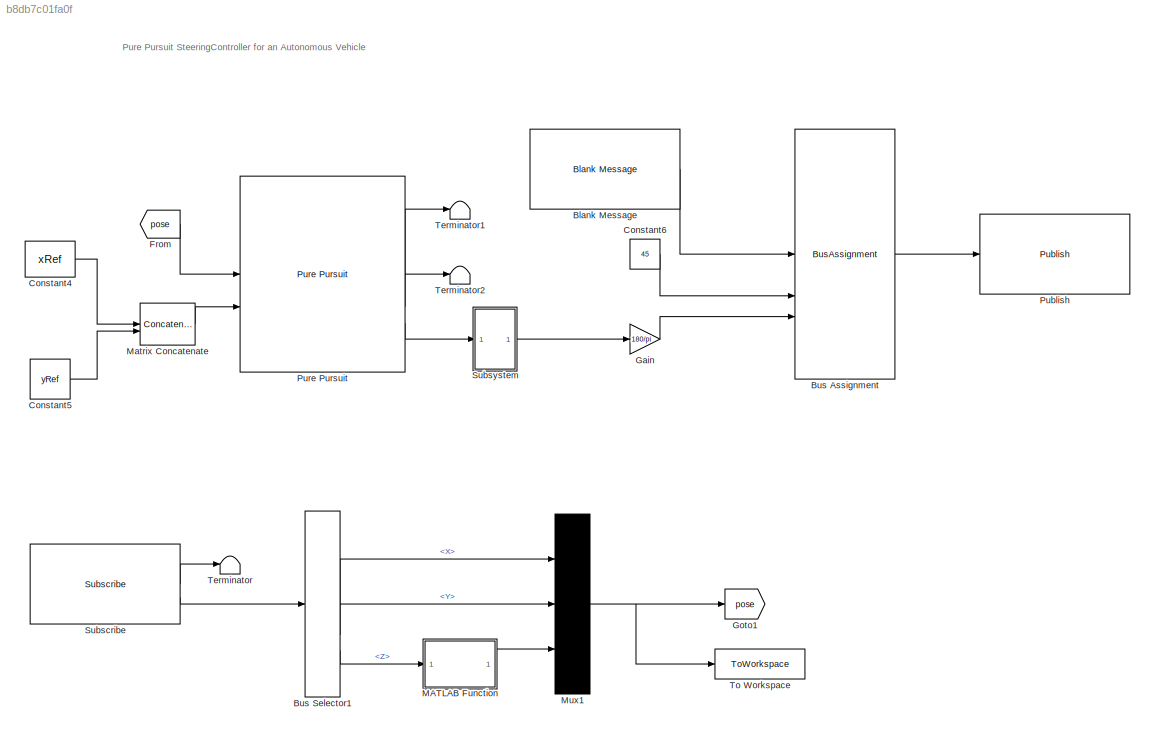
MODEL slx_b8db7c01fa0f
KIND model
CONFIG AbsTol = auto
CONFIG EnableMultiTasking = off
CONFIG FixedStep = auto
CONFIG MaxStep = auto
CONFIG MinStep = auto
CONFIG RelTol = 1e-3
CONFIG SampleTimeConstraint = Unconstrained
CONFIG SolverName = VariableStepAuto
CONFIG StartTime = 0.0
CONFIG StopTime = inf
BLOCK [Reference] Blank Message  REF=robotlib/Blank Message
  LibrarySourceBlock = roslib/ROS/Blank Message
  SourceBlock = robotlib/Blank Message
  SourceType = ROS Blank Message
BLOCK [BusAssignment] Bus Assignment
  AssignedSignals = Linear.X,Angular.Z
BLOCK [BusSelector] Bus Selector1
  OutputSignals = Pose.Position.X,Pose.Position.Y,Pose.Orientation.Z
BLOCK [Constant] Constant4
  Value = xRef
BLOCK [Constant] Constant5
  Value = yRef
BLOCK [Constant] Constant6
  Value = 45
BLOCK [From] From
  GotoTag = pose
BLOCK [Gain] Gain
  Gain = 180/pi
BLOCK [Goto] Goto1
  GotoTag = pose
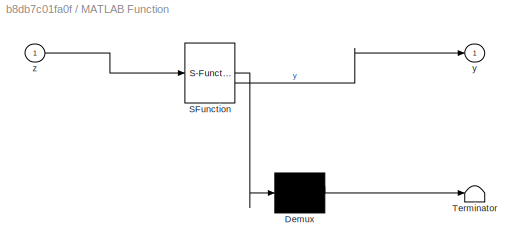
BLOCK [SubSystem] MATLAB Function
  ErrorFcn = Stateflow.Translate.translate
  LibrarySourceBlock = simulink/User-Defined\nFunctions/MATLAB Function
  PermitHierarchicalResolution = ExplicitOnly
  SFBlockType = MATLAB Function
  TreatAsAtomicUnit = on
BLOCK [Demux] MATLAB Function/ Demux 
  Outputs = 1
BLOCK [S-Function] MATLAB Function/ SFunction 
  EnableBusSupport = on
  FunctionName = sf_sfun
  PortCounts = [1 2]
  SFcnIsStateOwnerBlock = off
  SFunctionDeploymentMode = off
  Tag = Stateflow S-Function 2
BLOCK [Terminator] MATLAB Function/ Terminator 
BLOCK [Outport] MATLAB Function/y
BLOCK [Inport] MATLAB Function/z
BLOCK [Concatenate] Matrix Concatenate
  ConcatenateDimension = 2
  Mode = Multidimensional array
BLOCK [Mux] Mux1
  DisplayOption = bar
  Inputs = 3
BLOCK [Reference] Publish  REF=robotlib/Publish
  LibrarySourceBlock = roslib/ROS/Publish
  SourceBlock = robotlib/Publish
  SourceType = ROS Publish
BLOCK [Reference] Pure Pursuit  REF=robotalgslib/Pure Pursuit
  SourceBlock = robotalgslib/Pure Pursuit
  SourceType = nav.slalgs.internal.PurePursuit
BLOCK [Reference] Subscribe  REF=robotlib/Subscribe
  LibrarySourceBlock = roslib/ROS/Subscribe
  SourceBlock = robotlib/Subscribe
  SourceType = ROS Subscribe
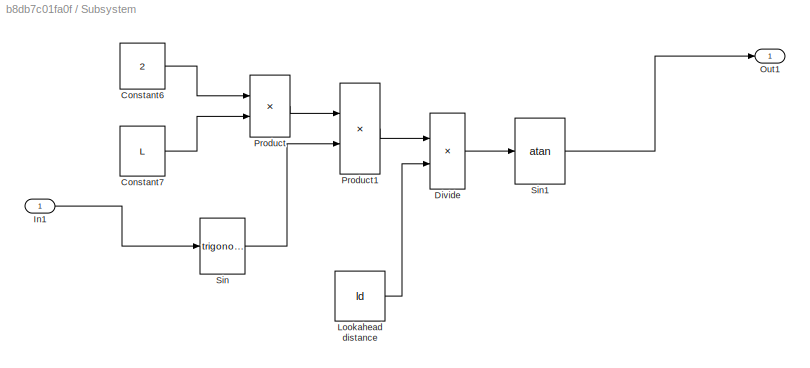
BLOCK [SubSystem] Subsystem
BLOCK [Constant] Subsystem/Constant6
  Value = 2
BLOCK [Constant] Subsystem/Constant7
  Value = L
BLOCK [Product] Subsystem/Divide
  Inputs = */
BLOCK [Inport] Subsystem/In1
BLOCK [Constant] Subsystem/Lookahead distance
  Value = ld
BLOCK [Outport] Subsystem/Out1
BLOCK [Product] Subsystem/Product
BLOCK [Product] Subsystem/Product1
BLOCK [Trigonometry] Subsystem/Sin
BLOCK [Trigonometry] Subsystem/Sin1
  Operator = atan
BLOCK [Terminator] Terminator
BLOCK [Terminator] Terminator1
BLOCK [Terminator] Terminator2
BLOCK [ToWorkspace] To Workspace
  FixptAsFi = on
  MaxDataPoints = inf
  SampleTime = -1
  SaveFormat = Timeseries
  VariableName = simout
ANNOTATION (root): Pure Pursuit SteeringController for an Autonomous Vehicle
LINE Blank Message:1 -> Bus Assignment:1
LINE Bus Assignment:1 -> Publish:1
LINE Bus Selector1:1 -> Mux1:1
LINE Bus Selector1:2 -> Mux1:2
LINE Bus Selector1:3 -> MATLAB Function:1
LINE Constant4:1 -> Matrix Concatenate:1
LINE Constant5:1 -> Matrix Concatenate:2
LINE Constant6:1 -> Bus Assignment:2
LINE From:1 -> Pure Pursuit:1
LINE Gain:1 -> Bus Assignment:3
LINE MATLAB Function:1 -> Mux1:3
LINE Matrix Concatenate:1 -> Pure Pursuit:2
NET Mux1:1 -> Goto1:1, To Workspace:1
LINE Pure Pursuit:1 -> Terminator1:1
LINE Pure Pursuit:2 -> Terminator2:1
LINE Pure Pursuit:3 -> Subsystem:1
LINE Subscribe:1 -> Terminator:1
LINE Subscribe:2 -> Bus Selector1:1
LINE Subsystem/Constant6:1 -> Subsystem/Product:1
LINE Subsystem/Constant7:1 -> Subsystem/Product:2
LINE Subsystem/Divide:1 -> Subsystem/Sin1:1
LINE Subsystem/In1:1 -> Subsystem/Sin:1
LINE Subsystem/Lookahead distance:1 -> Subsystem/Divide:2
LINE Subsystem/Product1:1 -> Subsystem/Divide:1
LINE Subsystem/Product:1 -> Subsystem/Product1:1
LINE Subsystem/Sin1:1 -> Subsystem/Out1:1
LINE Subsystem/Sin:1 -> Subsystem/Product1:2
LINE Subsystem:1 -> Gain:1
note: NET lines group one-source signal fan-out (src -> all destinations, sorted); 1:1 wires keep LINE
CHART MATLAB Function states=1 transitions=1
  STATE_LABEL 'eML_blk_kernel()'
  STATE_LABEL 'SCRIPT:\nfunction y = fcn(z)\nz = z*pi;\nif (z>0)\n    y = z;\nelseif (z<0)\n    y = pi + (pi-z);\nelse\n    y = z;\nend'
CHART  states=0 transitions=0
